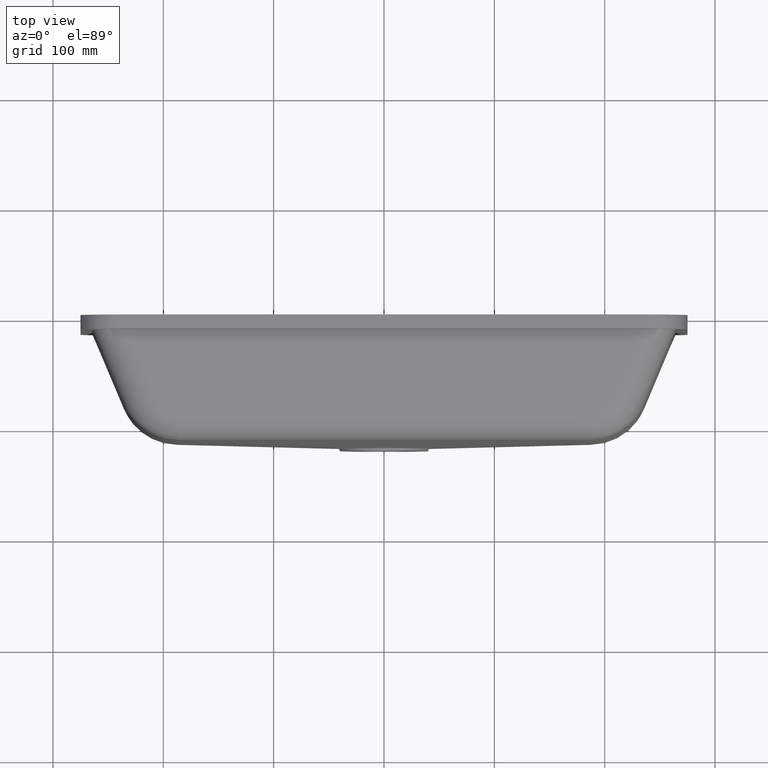
[diagram: clean part render]
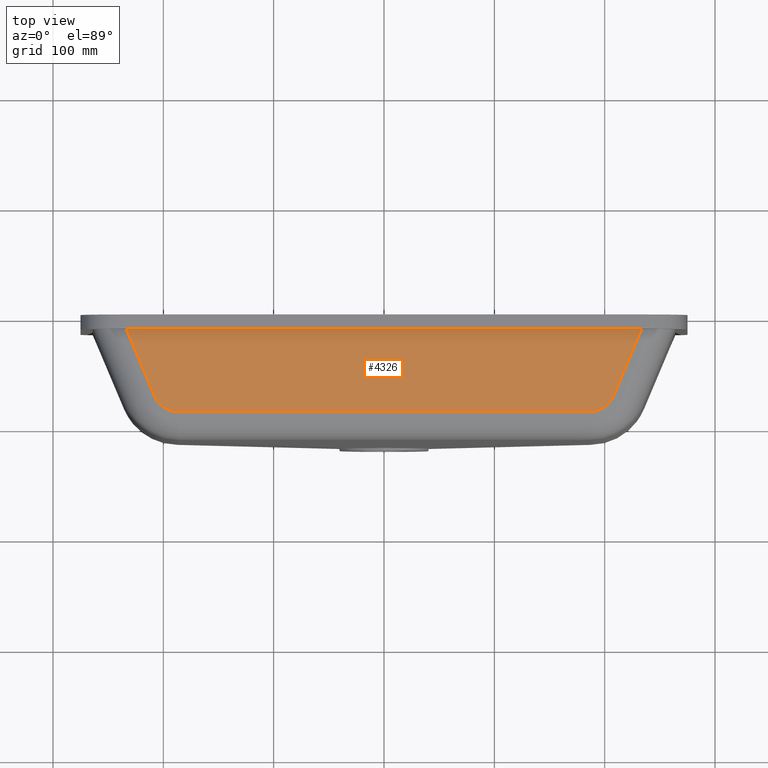
[diagram: same view with one face highlighted and labeled with its STEP entity id]
A machine part, top view. The second image highlights one B-rep face of the part: STEP entity #4326.
In plain terms, the highlighted planar face has unit normal (0, -0.156, 0.9878).
Its self-contained STEP definition (entity closure, byte-faithful):
#29 = VECTOR ( 'NONE', #5804, 1000.000000000000114 ) ;
#234 = CARTESIAN_POINT ( 'NONE',  ( -207.9584828659073708, -73.60418820552733621, 156.6012814996580573 ) ) ;
#246 = CARTESIAN_POINT ( 'NONE',  ( 186.7608692377320381, -87.67887720419032860, 154.3789621840796542 ) ) ;
#471 = DIRECTION ( 'NONE',  ( -1.000000000000000000, 0.000000000000000000, 0.000000000000000000 ) ) ;
#492 = DIRECTION ( 'NONE',  ( 1.000000000000000000, 0.000000000000000000, 0.000000000000000000 ) ) ;
#844 = CARTESIAN_POINT ( 'NONE',  ( -196.3044399570328267, -87.67887720419034281, 154.3789621840796258 ) ) ;
#850 = VERTEX_POINT ( 'NONE', #1618 ) ;
#931 = CARTESIAN_POINT ( 'NONE',  ( 186.7608692377320381, -87.67887720419032860, 154.3789621840796542 ) ) ;
#1394 = LINE ( 'NONE', #5890, #29 ) ;
#1579 = VECTOR ( 'NONE', #4848, 1000.000000000000000 ) ;
#1585 = ORIENTED_EDGE ( 'NONE', *, *, #3553, .F. ) ;
#1618 = CARTESIAN_POINT ( 'NONE',  ( -233.4760357945506257, -13.00000000000001066, 166.1703638478991820 ) ) ;
#1771 = VERTEX_POINT ( 'NONE', #5537 ) ;
#1953 = EDGE_CURVE ( 'NONE', #1771, #3911, #2322, .T. ) ;
#2300 = ORIENTED_EDGE ( 'NONE', *, *, #1953, .F. ) ;
#2317 = CARTESIAN_POINT ( 'NONE',  ( 207.9584828659075413, -73.60418820552739305, 156.6012814996580289 ) ) ;
#2322 =( BOUNDED_CURVE ( )  B_SPLINE_CURVE ( 3, ( #2317, #6201, #4230, #931 ),
 .UNSPECIFIED., .F., .T. ) 
 B_SPLINE_CURVE_WITH_KNOTS ( ( 4, 4 ),
 ( 1.969318772461317923, 3.141592653589793116 ),
 .UNSPECIFIED. ) 
 CURVE ( )  GEOMETRIC_REPRESENTATION_ITEM ( )  RATIONAL_B_SPLINE_CURVE ( ( 1.000000000000000000, 0.8887224862018691107, 0.8887224862018691107, 1.000000000000000000 ) ) 
 REPRESENTATION_ITEM ( '' )  );
#2331 = EDGE_LOOP ( 'NONE', ( #6172, #2856, #1585, #4134, #2300, #2349 ) ) ;
#2349 = ORIENTED_EDGE ( 'NONE', *, *, #3714, .T. ) ;
#2399 = CARTESIAN_POINT ( 'NONE',  ( 250.0000000000000000, -2.807326322514198669, 167.7797333759232856 ) ) ;
#2418 = CARTESIAN_POINT ( 'NONE',  ( 250.0000000000000000, -13.00000000000000000, 166.1703638478992104 ) ) ;
#2486 = LINE ( 'NONE', #3894, #1579 ) ;
#2607 = AXIS2_PLACEMENT_3D ( 'NONE', #2399, #5367, #471 ) ;
#2711 = CARTESIAN_POINT ( 'NONE',  ( -186.7608692377320097, -87.67887720419032860, 154.3789621840796826 ) ) ;
#2739 = CARTESIAN_POINT ( 'NONE',  ( -204.2550334427329801, -82.39988058556684791, 155.2124879659675685 ) ) ;
#2797 = VERTEX_POINT ( 'NONE', #4223 ) ;
#2856 = ORIENTED_EDGE ( 'NONE', *, *, #5700, .T. ) ;
#3054 = DIRECTION ( 'NONE',  ( 0.3840122885898557548, 0.9120291854009064947, 0.1440046082211958733 ) ) ;
#3242 =( BOUNDED_CURVE ( )  B_SPLINE_CURVE ( 3, ( #2711, #844, #2739, #234 ),
 .UNSPECIFIED., .F., .T. ) 
 B_SPLINE_CURVE_WITH_KNOTS ( ( 4, 4 ),
 ( 0.000000000000000000, 1.172273881128476969 ),
 .UNSPECIFIED. ) 
 CURVE ( )  GEOMETRIC_REPRESENTATION_ITEM ( )  RATIONAL_B_SPLINE_CURVE ( ( 1.000000000000000000, 0.8887224862018686666, 0.8887224862018686666, 1.000000000000000000 ) ) 
 REPRESENTATION_ITEM ( '' )  );
#3332 = VERTEX_POINT ( 'NONE', #4646 ) ;
#3448 = FACE_OUTER_BOUND ( 'NONE', #2331, .T. ) ;
#3553 = EDGE_CURVE ( 'NONE', #3332, #2797, #3242, .T. ) ;
#3714 = EDGE_CURVE ( 'NONE', #1771, #3860, #5032, .T. ) ;
#3857 = LINE ( 'NONE', #2418, #4734 ) ;
#3860 = VERTEX_POINT ( 'NONE', #4954 ) ;
#3894 = CARTESIAN_POINT ( 'NONE',  ( 250.0000000000000000, -87.67887720419032860, 154.3789621840796826 ) ) ;
#3911 = VERTEX_POINT ( 'NONE', #246 ) ;
#4134 = ORIENTED_EDGE ( 'NONE', *, *, #5109, .T. ) ;
#4223 = CARTESIAN_POINT ( 'NONE',  ( -207.9584828659073708, -73.60418820552733621, 156.6012814996580573 ) ) ;
#4230 = CARTESIAN_POINT ( 'NONE',  ( 196.3044399570329119, -87.67887720419032860, 154.3789621840797111 ) ) ;
#4326 = ADVANCED_FACE ( 'NONE', ( #3448 ), #4879, .T. ) ;
#4404 = VECTOR ( 'NONE', #3054, 1000.000000000000114 ) ;
#4646 = CARTESIAN_POINT ( 'NONE',  ( -186.7608692377320097, -87.67887720419032860, 154.3789621840796826 ) ) ;
#4734 = VECTOR ( 'NONE', #492, 1000.000000000000000 ) ;
#4848 = DIRECTION ( 'NONE',  ( 1.000000000000000000, -0.000000000000000000, -0.000000000000000000 ) ) ;
#4879 = PLANE ( 'NONE',  #2607 ) ;
#4954 = CARTESIAN_POINT ( 'NONE',  ( 233.4760357945506826, -12.99999999999999822, 166.1703638478991252 ) ) ;
#5032 = LINE ( 'NONE', #5948, #4404 ) ;
#5109 = EDGE_CURVE ( 'NONE', #3332, #3911, #2486, .T. ) ;
#5367 = DIRECTION ( 'NONE',  ( 0.000000000000000000, -0.1559625734730110680, 0.9877629653290690426 ) ) ;
#5537 = CARTESIAN_POINT ( 'NONE',  ( 207.9584828659075413, -73.60418820552739305, 156.6012814996580289 ) ) ;
#5693 = EDGE_CURVE ( 'NONE', #850, #3860, #3857, .T. ) ;
#5700 = EDGE_CURVE ( 'NONE', #850, #2797, #1394, .T. ) ;
#5804 = DIRECTION ( 'NONE',  ( 0.3840122885898561433, -0.9120291854009063837, -0.1440046082211958733 ) ) ;
#5890 = CARTESIAN_POINT ( 'NONE',  ( -165.8388122387881083, -173.6384059449356130, 140.8064050144882629 ) ) ;
#5948 = CARTESIAN_POINT ( 'NONE',  ( 222.9816693816455313, -37.92412023064968452, 162.2349764430597077 ) ) ;
#6172 = ORIENTED_EDGE ( 'NONE', *, *, #5693, .F. ) ;
#6201 = CARTESIAN_POINT ( 'NONE',  ( 204.2550334427330085, -82.39988058556686212, 155.2124879659676253 ) ) ;